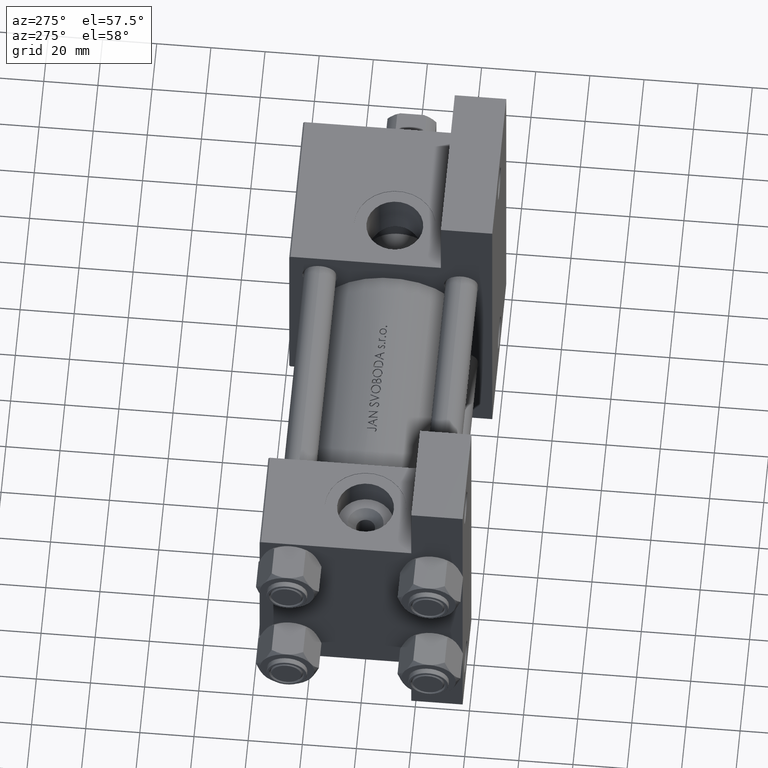
[diagram: clean part render]
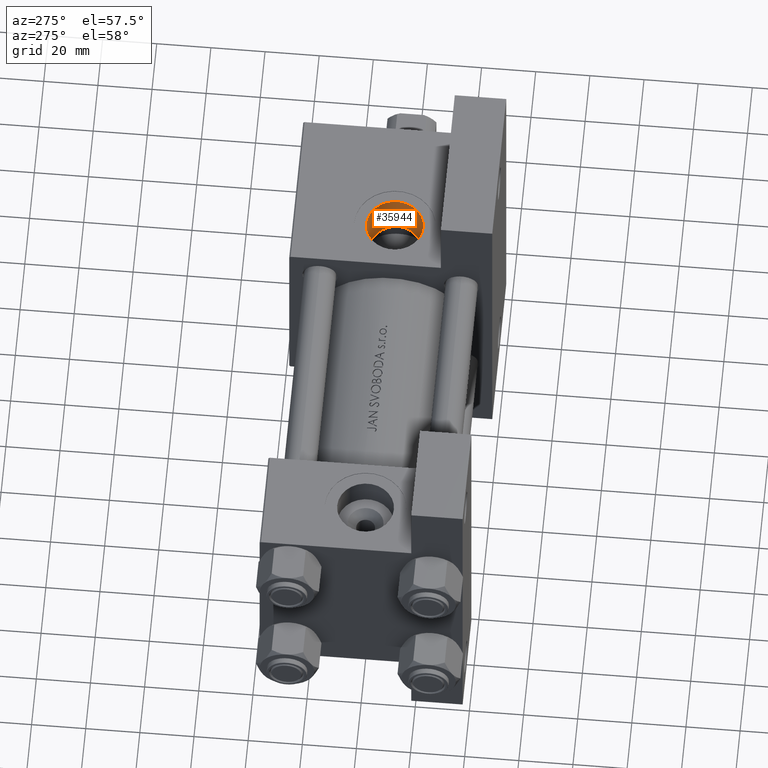
[diagram: same view with one face highlighted and labeled with its STEP entity id]
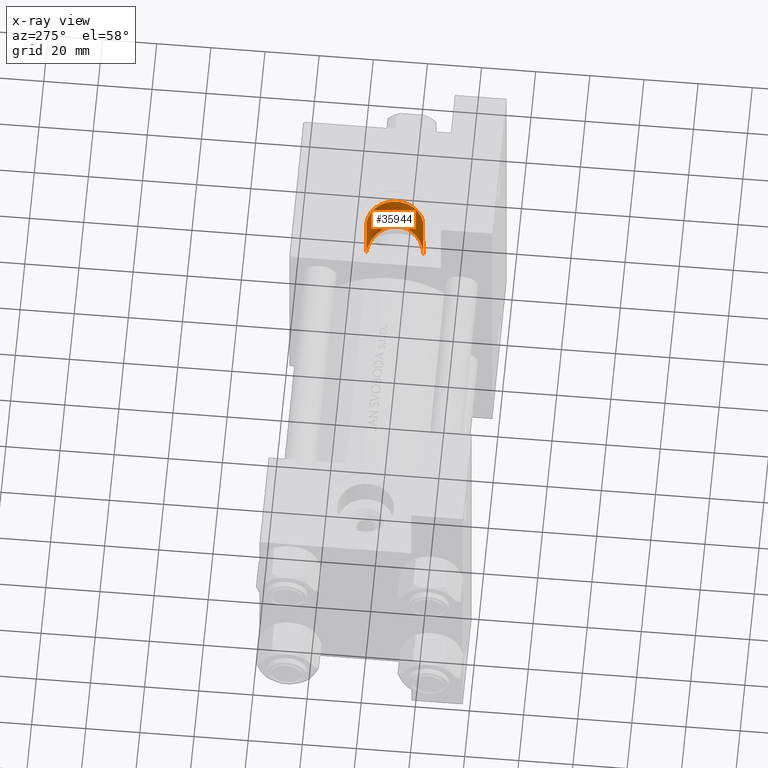
[diagram: x-ray of the same camera — body ghosted, the highlighted face saturated]
A machine part, auxiliary view. The second image highlights one B-rep face of the part: STEP entity #35944.
The next image is the same camera in x-ray: the body ghosted, the highlighted face saturated — about 0% of this face is hidden behind the body in this view.
In plain terms, the highlighted cylindrical surface (edge-blend (fillet) strip) has radius 10.48 mm, axis along (-0, -0, 1).
Its self-contained STEP definition (entity closure, byte-faithful):
#874 = CARTESIAN_POINT ( 'NONE',  ( 142.3470210746793327, -17.31154528053460595, 10.47999999999999510 ) ) ;
#2597 = CARTESIAN_POINT ( 'NONE',  ( 142.7047145583874794, -17.91665127801143953, -10.46219065497899692 ) ) ;
#3090 = CARTESIAN_POINT ( 'NONE',  ( 152.4583245133796936, -20.46430137750835954, 0.7579182357777466406 ) ) ;
#3672 = ORIENTED_EDGE ( 'NONE', *, *, #38345, .T. ) ;
#3700 = ORIENTED_EDGE ( 'NONE', *, *, #41855, .T. ) ;
#4348 = DIRECTION ( 'NONE',  ( 0.000000000000000000, 0.000000000000000000, -1.000000000000000000 ) ) ;
#4403 = CARTESIAN_POINT ( 'NONE',  ( 142.0000000000000284, -37.29999999999999716, -10.47999999999998266 ) ) ;
#4591 = CARTESIAN_POINT ( 'NONE',  ( 142.0000000000000284, 37.50100000000000477, 9.974746723040443104E-15 ) ) ;
#6112 = CARTESIAN_POINT ( 'NONE',  ( 150.9026386617617845, -19.87300753805846654, -5.539771893847126094 ) ) ;
#6588 = CARTESIAN_POINT ( 'NONE',  ( 146.6885837709134819, -18.47081169218747831, -9.397559365377063045 ) ) ;
#6831 = CARTESIAN_POINT ( 'NONE',  ( 145.4159050215026525, -17.65012615064442869, 9.931528811289364711 ) ) ;
#7746 = CARTESIAN_POINT ( 'NONE',  ( 142.0000000000000284, 37.50100000000000477, 10.47999999999999687 ) ) ;
#8608 = VERTEX_POINT ( 'NONE', #9069 ) ;
#9069 = CARTESIAN_POINT ( 'NONE',  ( 142.0000000000000284, -17.31154528053461306, 10.47999999999999154 ) ) ;
#9840 = CARTESIAN_POINT ( 'NONE',  ( 152.4776551375226177, -20.48265569949337461, 0.4117595292702391774 ) ) ;
#10226 = VERTEX_POINT ( 'NONE', #4403 ) ;
#10820 = CARTESIAN_POINT ( 'NONE',  ( 145.4291236246858716, -18.20648317701849095, -9.926633415679276595 ) ) ;
#11622 = VERTEX_POINT ( 'NONE', #31862 ) ;
#11715 = VECTOR ( 'NONE', #19229, 1000.000000000000000 ) ;
#12142 = VERTEX_POINT ( 'NONE', #29490 ) ;
#12594 = CARTESIAN_POINT ( 'NONE',  ( 142.0000000000000284, -17.31154528053461306, 10.47999999999999154 ) ) ;
#13448 = DIRECTION ( 'NONE',  ( 0.000000000000000000, 0.000000000000000000, -1.000000000000000000 ) ) ;
#13827 = CARTESIAN_POINT ( 'NONE',  ( 150.3225662003737853, -19.64111042044597966, -6.378170050295204341 ) ) ;
#14074 = CARTESIAN_POINT ( 'NONE',  ( 152.3507038963579134, -20.46901633175582447, -1.677836523642098010 ) ) ;
#14321 = CARTESIAN_POINT ( 'NONE',  ( 151.0415136392023783, -19.66186875787549226, 5.310054482731721315 ) ) ;
#14568 = CARTESIAN_POINT ( 'NONE',  ( 149.6611621740133558, -19.38999619374664363, -7.159076384942104632 ) ) ;
#16106 = CARTESIAN_POINT ( 'NONE',  ( 142.6954312938289320, -17.32248566803110990, 10.46281023584331393 ) ) ;
#17819 = CARTESIAN_POINT ( 'NONE',  ( 142.0000000000000284, -17.90669148670408362, -10.47999999999998089 ) ) ;
#18065 = CARTESIAN_POINT ( 'NONE',  ( 152.4669051482524651, -20.50255402113294068, -0.6300211231001662249 ) ) ;
#18311 = CARTESIAN_POINT ( 'NONE',  ( 152.3311065042815358, -20.37409322011633606, 1.794586109409245456 ) ) ;
#19229 = DIRECTION ( 'NONE',  ( -0.000000000000000000, -1.000000000000000000, -8.673617379884036705E-17 ) ) ;
#19466 = LINE ( 'NONE', #7746, #44468 ) ;
#19698 = CIRCLE ( 'NONE', #20518, 10.47999999999998622 ) ;
#19723 = LINE ( 'NONE', #23454, #11715 ) ;
#20518 = AXIS2_PLACEMENT_3D ( 'NONE', #47554, #27655, #13448 ) ;
#21075 = CARTESIAN_POINT ( 'NONE',  ( 152.1488622720015371, -20.39261420473474473, -2.705221023230776289 ) ) ;
#21316 = CARTESIAN_POINT ( 'NONE',  ( 148.3953719826939732, -18.50579674927558571, 8.329556230503516900 ) ) ;
#22047 = CARTESIAN_POINT ( 'NONE',  ( 151.5136165929027925, -19.90621515629138827, 4.408684660160838042 ) ) ;
#22794 = CYLINDRICAL_SURFACE ( 'NONE', #44267, 10.47999999999998622 ) ;
#23454 = CARTESIAN_POINT ( 'NONE',  ( 142.0000000000000284, 37.50100000000000477, -10.47999999999997556 ) ) ;
#23816 = CARTESIAN_POINT ( 'NONE',  ( 143.7410054315664070, -17.39963274831551132, 10.34017078318249361 ) ) ;
#25294 = CARTESIAN_POINT ( 'NONE',  ( 151.9112922687108380, -20.12166452589491428, 3.472274471029884957 ) ) ;
#25773 = CARTESIAN_POINT ( 'NONE',  ( 150.2943842801270478, -19.29805340160766747, 6.441284550439725365 ) ) ;
#26020 = CARTESIAN_POINT ( 'NONE',  ( 149.8679744497729303, -19.10325731143032968, 6.954996736502839561 ) ) ;
#26781 = FACE_OUTER_BOUND ( 'NONE', #33169, .T. ) ;
#27655 = DIRECTION ( 'NONE',  ( 0.000000000000000000, -1.000000000000000000, -8.673617379884036705E-17 ) ) ;
#29256 = CARTESIAN_POINT ( 'NONE',  ( 151.0783182432222986, -19.94519646484593167, -5.247152792081113404 ) ) ;
#29490 = CARTESIAN_POINT ( 'NONE',  ( 142.0000000000000284, -17.90669148670408362, -10.47999999999998089 ) ) ;
#29504 = CARTESIAN_POINT ( 'NONE',  ( 148.9416544847751709, -19.13207627753017093, -7.880695095096321268 ) ) ;
#29747 = CARTESIAN_POINT ( 'NONE',  ( 147.2983228447828594, -18.62849765410346947, -9.067371222007592380 ) ) ;
#30411 = DIRECTION ( 'NONE',  ( -0.000000000000000000, -1.000000000000000000, -8.673617379884036705E-17 ) ) ;
#31862 = CARTESIAN_POINT ( 'NONE',  ( 142.0000000000000284, -37.29999999999999716, 10.47999999999998977 ) ) ;
#31928 = B_SPLINE_CURVE_WITH_KNOTS ( 'NONE', 3,
 ( #12594, #874, #16106, #42958, #23816, #38985, #6831, #40951, #32738, #21316, #33229, #26020, #25773, #33471, #14321, #44676, #22047, #25294, #36959, #18311, #48170, #3090, #9840, #32496, #18065, #48661, #14074, #21075, #36720, #47936, #40223, #29256, #6112, #44920, #13827, #32983, #14568, #29504, #37205, #29747, #6588, #10820, #48416, #36471, #44431, #2597, #41195, #17819 ),
 .UNSPECIFIED., .F., .F.,
 ( 4, 2, 2, 2, 2, 2, 2, 2, 2, 2, 2, 2, 2, 2, 2, 2, 2, 2, 2, 2, 2, 2, 2, 4 ),
 ( 0.03337172289375579803, 0.03441233523662728944, 0.03545294757949878778, 0.03753417226524177058, 0.03961539695098476033, 0.04169662163672774313, 0.04377784632247073981, 0.04481845866534223122, 0.04585907100821372262, 0.04794029569395671930, 0.04898090803682821071, 0.05002152037969970211, 0.05106213272257120045, 0.05210274506544269879, 0.05418396975118568160, 0.05522458209405717994, 0.05626519443692867134, 0.05730580677980016968, 0.05834641912267166108, 0.06042764380841469940, 0.06250886849415773772, 0.06459009317990078991, 0.06563070552277235070, 0.06667131786564391149 ),
 .UNSPECIFIED. ) ;
#32496 = CARTESIAN_POINT ( 'NONE',  ( 152.4819445000525775, -20.50178181377810915, -0.2822101851753042179 ) ) ;
#32527 = EDGE_CURVE ( 'NONE', #8608, #11622, #19466, .T. ) ;
#32738 = CARTESIAN_POINT ( 'NONE',  ( 147.2787600379286062, -18.12953982762253347, 9.078379935655647159 ) ) ;
#32983 = CARTESIAN_POINT ( 'NONE',  ( 149.8913372837819225, -19.47582360453931116, -6.904560610471913940 ) ) ;
#33169 = EDGE_LOOP ( 'NONE', ( #39653, #38762, #3700, #3672 ) ) ;
#33229 = CARTESIAN_POINT ( 'NONE',  ( 148.9208345979154728, -18.70786800614511236, 7.898040897294844598 ) ) ;
#33471 = CARTESIAN_POINT ( 'NONE',  ( 150.8632463434475142, -19.57285682509593272, 5.602446212762891342 ) ) ;
#35030 = EDGE_CURVE ( 'NONE', #8608, #12142, #31928, .T. ) ;
#35944 = ADVANCED_FACE ( 'NONE', ( #26781 ), #22794, .F. ) ;
#36471 = CARTESIAN_POINT ( 'NONE',  ( 143.7534701870719118, -17.98521153983802634, -10.33810977386607100 ) ) ;
#36720 = CARTESIAN_POINT ( 'NONE',  ( 151.9485359727863738, -20.30891902702526153, -3.366903607565236989 ) ) ;
#36959 = CARTESIAN_POINT ( 'NONE',  ( 152.1175830810126115, -20.24111318549747551, 2.820020607438576743 ) ) ;
#37205 = CARTESIAN_POINT ( 'NONE',  ( 148.4217440813015401, -18.95863385658994815, -8.309672003124298101 ) ) ;
#38345 = EDGE_CURVE ( 'NONE', #10226, #11622, #19698, .T. ) ;
#38762 = ORIENTED_EDGE ( 'NONE', *, *, #35030, .T. ) ;
#38985 = CARTESIAN_POINT ( 'NONE',  ( 144.7588417203788254, -17.52693762274574851, 10.13402779325157077 ) ) ;
#39653 = ORIENTED_EDGE ( 'NONE', *, *, #32527, .F. ) ;
#40223 = CARTESIAN_POINT ( 'NONE',  ( 151.4025389929008725, -20.07976061505709708, -4.641199740976985844 ) ) ;
#40951 = CARTESIAN_POINT ( 'NONE',  ( 146.6848851208464168, -17.95378683072778259, 9.399761861338273405 ) ) ;
#41195 = CARTESIAN_POINT ( 'NONE',  ( 142.3524141148301680, -17.90669148670408362, -10.47999999999997556 ) ) ;
#41855 = EDGE_CURVE ( 'NONE', #12142, #10226, #19723, .T. ) ;
#41956 = DIRECTION ( 'NONE',  ( -0.000000000000000000, -1.000000000000000000, -8.673617379884036705E-17 ) ) ;
#42958 = CARTESIAN_POINT ( 'NONE',  ( 143.3951252308203266, -17.36667489365846606, 10.39267281819420319 ) ) ;
#44267 = AXIS2_PLACEMENT_3D ( 'NONE', #4591, #41956, #4348 ) ;
#44431 = CARTESIAN_POINT ( 'NONE',  ( 143.4044395936603280, -17.95581939429250085, -10.39141979412303840 ) ) ;
#44468 = VECTOR ( 'NONE', #30411, 1000.000000000000000 ) ;
#44676 = CARTESIAN_POINT ( 'NONE',  ( 151.3662177968320179, -19.82832408839749760, 4.713768309937338863 ) ) ;
#44920 = CARTESIAN_POINT ( 'NONE',  ( 150.5247630629396554, -19.72096722719661344, -6.105281524917115732 ) ) ;
#47554 = CARTESIAN_POINT ( 'NONE',  ( 142.0000000000000284, -37.29999999999999716, 3.486794186713383443E-15 ) ) ;
#47936 = CARTESIAN_POINT ( 'NONE',  ( 151.5516556862485515, -20.14238090880650134, -4.326202217588882348 ) ) ;
#48170 = CARTESIAN_POINT ( 'NONE',  ( 152.3852102648228879, -20.41012014665353291, 1.448585321857994712 ) ) ;
#48416 = CARTESIAN_POINT ( 'NONE',  ( 144.7750123670571440, -18.09812027575558702, -10.12979723076933425 ) ) ;
#48661 = CARTESIAN_POINT ( 'NONE',  ( 152.4015008588858962, -20.48626732390679805, -1.327331865308766901 ) ) ;